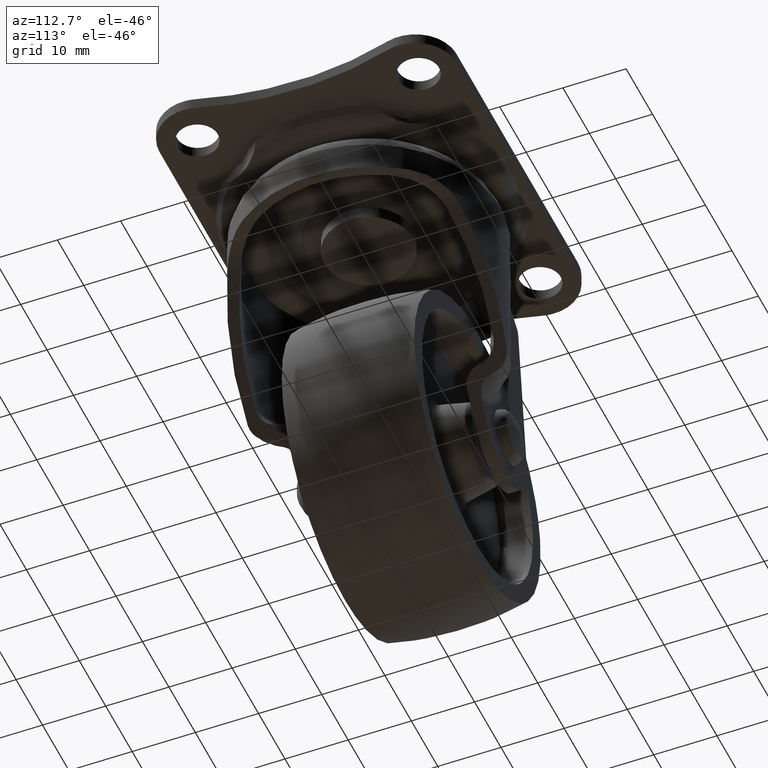
[diagram: clean part render]
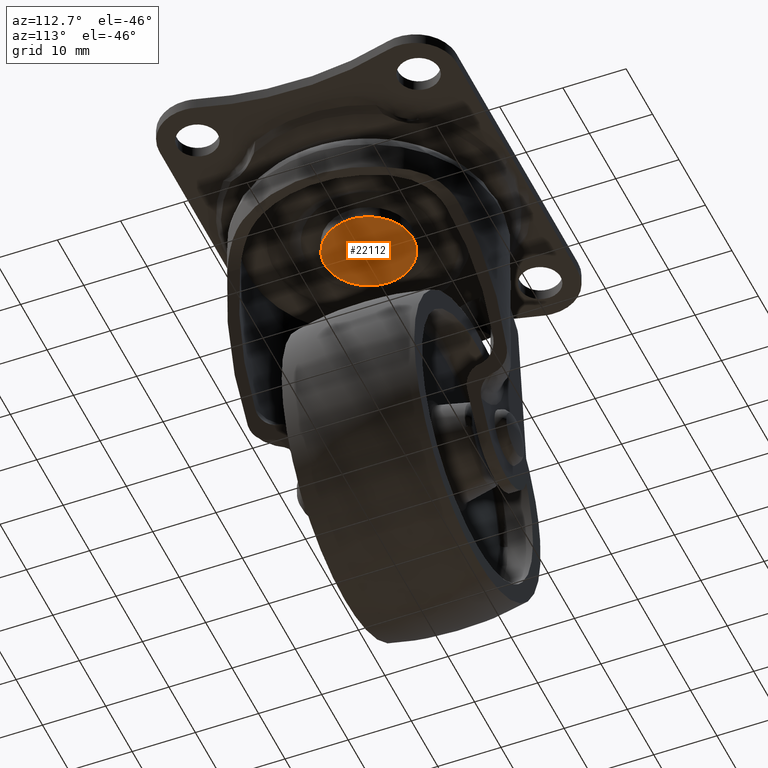
[diagram: same view with one face highlighted and labeled with its STEP entity id]
A machine part, auxiliary view. The second image highlights one B-rep face of the part: STEP entity #22112.
In plain terms, the highlighted face is a freeform B-spline surface patch.
Its self-contained STEP definition (entity closure, byte-faithful):
#20954=CARTESIAN_POINT('',(-0.549213670183604,6.978421336124915,-10.099995000000019));
#20955=VERTEX_POINT('',#20954);
#20961=CARTESIAN_POINT('',(-7.0,0.0,-10.099995000000019));
#20962=VERTEX_POINT('',#20961);
#20963=CARTESIAN_POINT('',(-7.0,0.0,-10.099995000000019));
#20964=CARTESIAN_POINT('',(-6.999999999999999,6.470733441442468,-10.099995000000021));
#20965=CARTESIAN_POINT('',(-0.549213670183604,6.978421336124915,-10.099995000000021));
#20973=(BOUNDED_CURVE()B_SPLINE_CURVE(2,(#20963,#20964,#20965),.UNSPECIFIED.,.F.,.U.)B_SPLINE_CURVE_WITH_KNOTS((3,3),(0.0,0.236331300628410),.UNSPECIFIED.)CURVE()GEOMETRIC_REPRESENTATION_ITEM()RATIONAL_B_SPLINE_CURVE((1.0,0.723120658610302,0.969723356162722))REPRESENTATION_ITEM(''));
#20974=EDGE_CURVE('',#20962,#20955,#20973,.T.);
#20976=CARTESIAN_POINT('',(0.549213670183604,-6.978421336124915,-10.099995000000019));
#20977=VERTEX_POINT('',#20976);
#20978=CARTESIAN_POINT('',(0.549213670183604,-6.978421336124915,-10.099995000000021));
#20979=CARTESIAN_POINT('',(0.275030749142787,-7.000000000000001,-10.099995000000023));
#20980=CARTESIAN_POINT('',(0.0,-7.0,-10.099995000000019));
#20981=CARTESIAN_POINT('',(-6.999999999999999,-6.999999999999999,-10.099995000000021));
#20982=CARTESIAN_POINT('',(-7.0,0.0,-10.099995000000019));
#20990=(BOUNDED_CURVE()B_SPLINE_CURVE(2,(#20978,#20979,#20980,#20981,#20982),.UNSPECIFIED.,.F.,.U.)B_SPLINE_CURVE_WITH_KNOTS((3,2,3),(0.736331300628410,0.750000000000000,1.0),.UNSPECIFIED.)CURVE()GEOMETRIC_REPRESENTATION_ITEM()RATIONAL_B_SPLINE_CURVE((0.969723356162722,0.983986122576246,1.0,0.707106781186547,1.0))REPRESENTATION_ITEM(''));
#20991=EDGE_CURVE('',#20977,#20962,#20990,.T.);
#21067=CARTESIAN_POINT('',(7.0,0.0,-10.099995000000019));
#21068=VERTEX_POINT('',#21067);
#21069=CARTESIAN_POINT('',(7.0,0.0,-10.099995000000019));
#21070=CARTESIAN_POINT('',(6.999999999999999,-6.470733441442465,-10.099995000000023));
#21071=CARTESIAN_POINT('',(0.549213670183604,-6.978421336124915,-10.099995000000021));
#21079=(BOUNDED_CURVE()B_SPLINE_CURVE(2,(#21069,#21070,#21071),.UNSPECIFIED.,.F.,.U.)B_SPLINE_CURVE_WITH_KNOTS((3,3),(0.500000000000000,0.736331300628410),.UNSPECIFIED.)CURVE()GEOMETRIC_REPRESENTATION_ITEM()RATIONAL_B_SPLINE_CURVE((1.0,0.723120658610302,0.969723356162722))REPRESENTATION_ITEM(''));
#21080=EDGE_CURVE('',#21068,#20977,#21079,.T.);
#21082=CARTESIAN_POINT('',(-0.549213670183604,6.978421336124916,-10.099995000000021));
#21083=CARTESIAN_POINT('',(-0.275030749142786,6.999999999999999,-10.099995000000019));
#21084=CARTESIAN_POINT('',(0.0,7.0,-10.099995000000019));
#21085=CARTESIAN_POINT('',(6.999999999999999,6.999999999999999,-10.099995000000021));
#21086=CARTESIAN_POINT('',(7.0,0.0,-10.099995000000019));
#21094=(BOUNDED_CURVE()B_SPLINE_CURVE(2,(#21082,#21083,#21084,#21085,#21086),.UNSPECIFIED.,.F.,.U.)B_SPLINE_CURVE_WITH_KNOTS((3,2,3),(0.236331300628410,0.250000000000000,0.500000000000000),.UNSPECIFIED.)CURVE()GEOMETRIC_REPRESENTATION_ITEM()RATIONAL_B_SPLINE_CURVE((0.969723356162722,0.983986122576246,1.0,0.707106781186547,1.0))REPRESENTATION_ITEM(''));
#21095=EDGE_CURVE('',#20955,#21068,#21094,.T.);
#22101=CARTESIAN_POINT('',(-7.699299972865284,7.697163269087733,-10.099995000000000));
#22102=CARTESIAN_POINT('',(7.699300348374545,7.697163269087733,-10.099995000000000));
#22103=CARTESIAN_POINT('',(-7.699299972865284,-7.697163644596994,-10.099995000000000));
#22104=CARTESIAN_POINT('',(7.699300348374545,-7.697163644596994,-10.099995000000000));
#22105=B_SPLINE_SURFACE_WITH_KNOTS('',1,1,((#22101,#22103),(#22102,#22104)),.UNSPECIFIED.,.F.,.F.,.U.,(2,2),(2,2),(0.0,15.398600321239829),(0.0,15.394326913684729),.UNSPECIFIED.);
#22106=ORIENTED_EDGE('',*,*,#20974,.T.);
#22107=ORIENTED_EDGE('',*,*,#21095,.T.);
#22108=ORIENTED_EDGE('',*,*,#21080,.T.);
#22109=ORIENTED_EDGE('',*,*,#20991,.T.);
#22110=EDGE_LOOP('',(#22106,#22107,#22108,#22109));
#22111=FACE_OUTER_BOUND('',#22110,.T.);
#22112=ADVANCED_FACE('',(#22111),#22105,.T.);